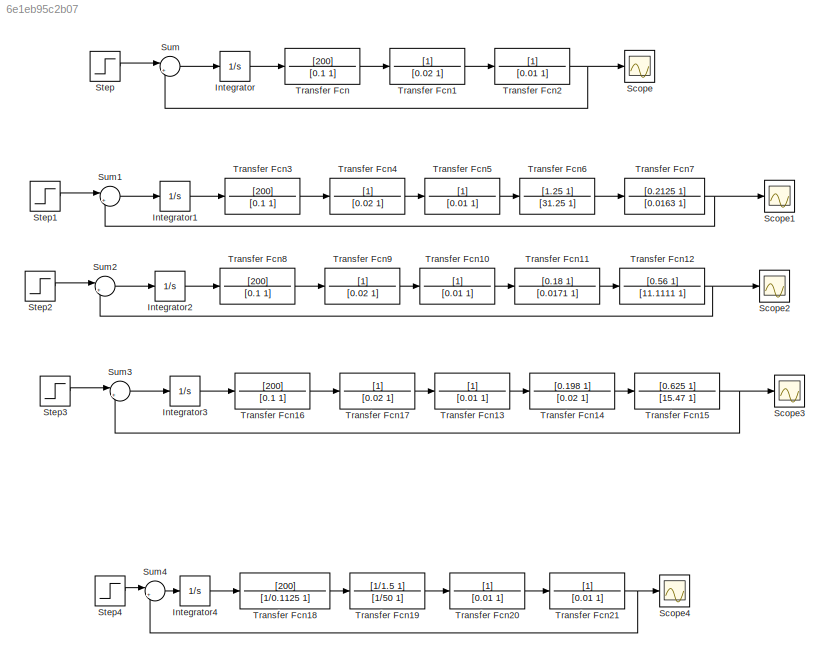
MODEL slx_6e1eb95c2b07
KIND model
CONFIG AbsTol = auto
CONFIG EnableMultiTasking = off
CONFIG FixedStep = auto
CONFIG MaxStep = auto
CONFIG MinStep = auto
CONFIG RelTol = 1e-3
CONFIG SampleTimeConstraint = Unconstrained
CONFIG SolverName = VariableStepAuto
CONFIG StartTime = 0.0
CONFIG StopTime = 10.0
BLOCK [Integrator] Integrator
  Ports = [1, 1]
BLOCK [Integrator] Integrator1
  Ports = [1, 1]
BLOCK [Integrator] Integrator2
  Ports = [1, 1]
BLOCK [Integrator] Integrator3
  Ports = [1, 1]
BLOCK [Integrator] Integrator4
  Ports = [1, 1]
BLOCK [Scope] Scope
  Floating = off
  NumInputPorts = 1
  Ports = [1]
  ScopeSpecificationString = Simulink.scopes.TimeScopeBlockCfg('CurrentConfiguration', extmgr.ConfigurationSet(extmgr.Configuration('Core','General UI',true,'DisplayFullSourceName',false,'ShowMainToolbar',true),extmgr.Configuration('Sources','WiredSimulink',true,'DataLogging',false,'DataLoggingVariableName','ScopeData','DataLoggingLimitDataPoints',false,'DataLoggingMaxPoints','5000','DataLoggingDecimateData',false,'DataLoggin...<+2018ch>
BLOCK [Scope] Scope1
  Floating = off
  NumInputPorts = 1
  Ports = [1]
  ScopeSpecificationString = Simulink.scopes.TimeScopeBlockCfg('CurrentConfiguration', extmgr.ConfigurationSet(extmgr.Configuration('Core','General UI',true,'DisplayFullSourceName',false,'ShowMainToolbar',true),extmgr.Configuration('Sources','WiredSimulink',true,'DataLogging',false,'DataLoggingVariableName','ScopeData1','DataLoggingLimitDataPoints',false,'DataLoggingMaxPoints','5000','DataLoggingDecimateData',false,'DataLoggi...<+1975ch>
BLOCK [Scope] Scope2
  Floating = off
  NumInputPorts = 1
  Ports = [1]
  ScopeSpecificationString = Simulink.scopes.TimeScopeBlockCfg('CurrentConfiguration', extmgr.ConfigurationSet(extmgr.Configuration('Core','General UI',true,'DisplayFullSourceName',false,'ShowMainToolbar',true),extmgr.Configuration('Sources','WiredSimulink',true,'DataLogging',false,'DataLoggingVariableName','ScopeData2','DataLoggingLimitDataPoints',false,'DataLoggingMaxPoints','5000','DataLoggingDecimateData',false,'DataLoggi...<+1974ch>
BLOCK [Scope] Scope3
  Floating = off
  NumInputPorts = 1
  Ports = [1]
  ScopeSpecificationString = Simulink.scopes.TimeScopeBlockCfg('CurrentConfiguration', extmgr.ConfigurationSet(extmgr.Configuration('Core','General UI',true,'DisplayFullSourceName',false,'ShowMainToolbar',true),extmgr.Configuration('Sources','WiredSimulink',true,'DataLogging',false,'DataLoggingVariableName','ScopeData3','DataLoggingLimitDataPoints',false,'DataLoggingMaxPoints','5000','DataLoggingDecimateData',false,'DataLoggi...<+1975ch>
BLOCK [Scope] Scope4
  Floating = off
  NumInputPorts = 1
  Ports = [1]
  ScopeSpecificationString = Simulink.scopes.TimeScopeBlockCfg('CurrentConfiguration', extmgr.ConfigurationSet(extmgr.Configuration('Core','General UI',true,'DisplayFullSourceName',false,'ShowMainToolbar',true),extmgr.Configuration('Sources','WiredSimulink',true,'DataLogging',false,'DataLoggingVariableName','ScopeData4','DataLoggingLimitDataPoints',false,'DataLoggingMaxPoints','5000','DataLoggingDecimateData',false,'DataLoggi...<+1975ch>
BLOCK [Step] Step
  SampleTime = 0
BLOCK [Step] Step1
  SampleTime = 0
BLOCK [Step] Step2
  SampleTime = 0
BLOCK [Step] Step3
  SampleTime = 0
BLOCK [Step] Step4
  SampleTime = 0
BLOCK [Sum] Sum
  Inputs = |+-
  Ports = [2, 1]
BLOCK [Sum] Sum1
  Inputs = |+-
  Ports = [2, 1]
BLOCK [Sum] Sum2
  Inputs = |+-
  Ports = [2, 1]
BLOCK [Sum] Sum3
  Inputs = |+-
  Ports = [2, 1]
BLOCK [Sum] Sum4
  Inputs = |+-
  Ports = [2, 1]
BLOCK [TransferFcn] Transfer Fcn
  Denominator = [0.1 1]
  Numerator = [200]
BLOCK [TransferFcn] Transfer Fcn1
  Denominator = [0.02 1]
BLOCK [TransferFcn] Transfer Fcn10
  Denominator = [0.01 1]
BLOCK [TransferFcn] Transfer Fcn11
  Denominator = [0.0171 1]
  Numerator = [0.18 1]
BLOCK [TransferFcn] Transfer Fcn12
  Denominator = [11.1111 1]
  Numerator = [0.56 1]
BLOCK [TransferFcn] Transfer Fcn13
  Denominator = [0.01 1]
BLOCK [TransferFcn] Transfer Fcn14
  Denominator = [0.02 1]
  Numerator = [0.198 1]
BLOCK [TransferFcn] Transfer Fcn15
  Denominator = [15.47 1]
  Numerator = [0.625 1]
BLOCK [TransferFcn] Transfer Fcn16
  Denominator = [0.1 1]
  Numerator = [200]
BLOCK [TransferFcn] Transfer Fcn17
  Denominator = [0.02 1]
BLOCK [TransferFcn] Transfer Fcn18
  Denominator = [1/0.1125 1]
  Numerator = [200]
BLOCK [TransferFcn] Transfer Fcn19
  Denominator = [1/50 1]
  Numerator = [1/1.5 1]
BLOCK [TransferFcn] Transfer Fcn2
  Denominator = [0.01 1]
BLOCK [TransferFcn] Transfer Fcn20
  Denominator = [0.01 1]
BLOCK [TransferFcn] Transfer Fcn21
  Denominator = [0.01 1]
BLOCK [TransferFcn] Transfer Fcn3
  Denominator = [0.1 1]
  Numerator = [200]
BLOCK [TransferFcn] Transfer Fcn4
  Denominator = [0.02 1]
BLOCK [TransferFcn] Transfer Fcn5
  Denominator = [0.01 1]
BLOCK [TransferFcn] Transfer Fcn6
  Denominator = [31.25 1]
  Numerator = [1.25 1]
BLOCK [TransferFcn] Transfer Fcn7
  Denominator = [0.0163 1]
  Numerator = [0.2125 1]
BLOCK [TransferFcn] Transfer Fcn8
  Denominator = [0.1 1]
  Numerator = [200]
BLOCK [TransferFcn] Transfer Fcn9
  Denominator = [0.02 1]
LINE Integrator1:1 -> Transfer Fcn3:1
LINE Integrator2:1 -> Transfer Fcn8:1
LINE Integrator3:1 -> Transfer Fcn16:1
LINE Integrator4:1 -> Transfer Fcn18:1
LINE Integrator:1 -> Transfer Fcn:1
LINE Step1:1 -> Sum1:1
LINE Step2:1 -> Sum2:1
LINE Step3:1 -> Sum3:1
LINE Step4:1 -> Sum4:1
LINE Step:1 -> Sum:1
LINE Sum1:1 -> Integrator1:1
LINE Sum2:1 -> Integrator2:1
LINE Sum3:1 -> Integrator3:1
LINE Sum4:1 -> Integrator4:1
LINE Sum:1 -> Integrator:1
LINE Transfer Fcn10:1 -> Transfer Fcn11:1
LINE Transfer Fcn11:1 -> Transfer Fcn12:1
NET Transfer Fcn12:1 -> Scope2:1, Sum2:2
LINE Transfer Fcn13:1 -> Transfer Fcn14:1
LINE Transfer Fcn14:1 -> Transfer Fcn15:1
NET Transfer Fcn15:1 -> Scope3:1, Sum3:2
LINE Transfer Fcn16:1 -> Transfer Fcn17:1
LINE Transfer Fcn17:1 -> Transfer Fcn13:1
LINE Transfer Fcn18:1 -> Transfer Fcn19:1
LINE Transfer Fcn19:1 -> Transfer Fcn20:1
LINE Transfer Fcn1:1 -> Transfer Fcn2:1
LINE Transfer Fcn20:1 -> Transfer Fcn21:1
NET Transfer Fcn21:1 -> Scope4:1, Sum4:2
NET Transfer Fcn2:1 -> Scope:1, Sum:2
LINE Transfer Fcn3:1 -> Transfer Fcn4:1
LINE Transfer Fcn4:1 -> Transfer Fcn5:1
LINE Transfer Fcn5:1 -> Transfer Fcn6:1
LINE Transfer Fcn6:1 -> Transfer Fcn7:1
NET Transfer Fcn7:1 -> Scope1:1, Sum1:2
LINE Transfer Fcn8:1 -> Transfer Fcn9:1
LINE Transfer Fcn9:1 -> Transfer Fcn10:1
LINE Transfer Fcn:1 -> Transfer Fcn1:1
note: NET lines group one-source signal fan-out (src -> all destinations, sorted); 1:1 wires keep LINE
